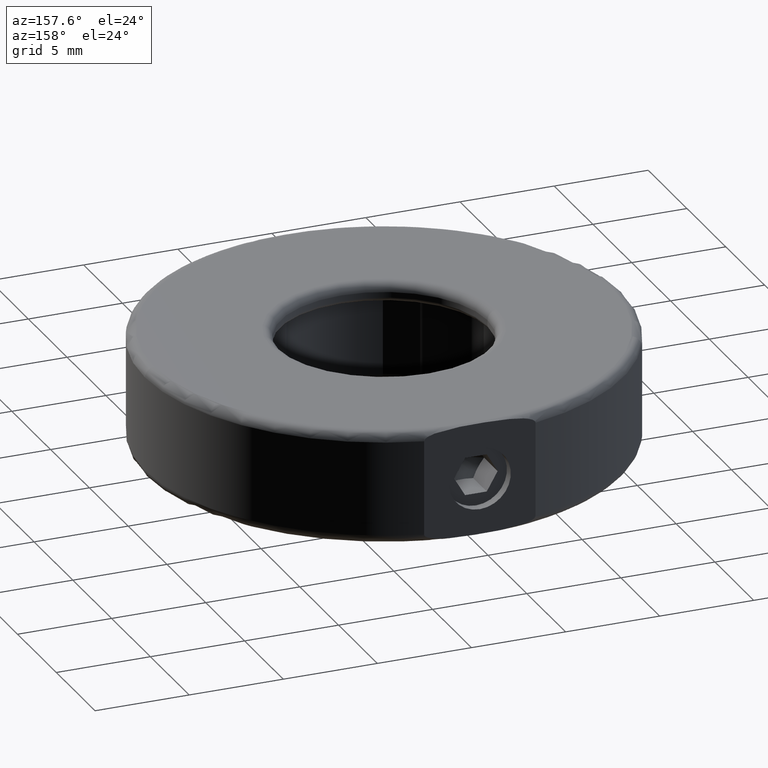
[diagram: clean part render]
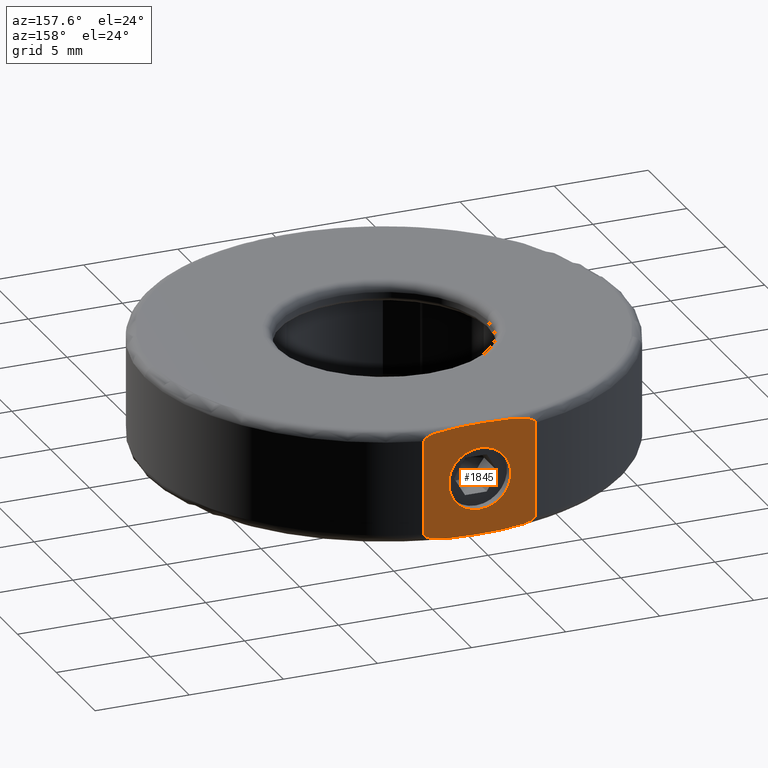
[diagram: same view with one face highlighted and labeled with its STEP entity id]
A machine part, auxiliary view. The second image highlights one B-rep face of the part: STEP entity #1845.
In plain terms, the highlighted planar face has unit normal (0, 1, 0).
Its self-contained STEP definition (entity closure, byte-faithful):
#66 = VERTEX_POINT ( 'NONE', #1600 ) ;
#76 = VERTEX_POINT ( 'NONE', #282 ) ;
#114 = CARTESIAN_POINT ( 'NONE',  ( -2.871027734352352000, 13.62512822390195500, 2.719092662411367400 ) ) ;
#124 = CARTESIAN_POINT ( 'NONE',  ( -3.091778835837235600, 13.62512822390195300, 2.533226409577007800 ) ) ;
#133 = CARTESIAN_POINT ( 'NONE',  ( -0.6459958498050177900, 13.62512822390195300, -2.976957350977251800 ) ) ;
#152 = CARTESIAN_POINT ( 'NONE',  ( -2.693521343809027500, 13.62512822390195500, -2.787365535200864800 ) ) ;
#162 = CARTESIAN_POINT ( 'NONE',  ( 2.749478708025364400, 13.62512822390195500, -2.636536391317756900 ) ) ;
#176 = AXIS2_PLACEMENT_3D ( 'NONE', #780, #992, #1003 ) ;
#189 = VERTEX_POINT ( 'NONE', #1264 ) ;
#264 = EDGE_LOOP ( 'NONE', ( #271, #419, #1634, #2265 ) ) ;
#271 = ORIENTED_EDGE ( 'NONE', *, *, #1625, .F. ) ;
#282 = CARTESIAN_POINT ( 'NONE',  ( -0.1307823819386641500, 13.62512822390195700, 1.649999999999987000 ) ) ;
#288 = CARTESIAN_POINT ( 'NONE',  ( -2.690206657662578900, 13.62512822390195500, 2.788354658295196100 ) ) ;
#310 = LINE ( 'NONE', #1415, #2058 ) ;
#312 = CARTESIAN_POINT ( 'NONE',  ( -3.037157889564420500, 13.62512822390195700, -2.614659632604455600 ) ) ;
#320 = CARTESIAN_POINT ( 'NONE',  ( -3.036354261264732300, 13.62512822390196000, 2.615509013855479300 ) ) ;
#323 = CARTESIAN_POINT ( 'NONE',  ( 2.815521369404864900, 13.62512822390195500, -2.564068744011605900 ) ) ;
#337 = CARTESIAN_POINT ( 'NONE',  ( 2.428641893785251400, 13.62512822390195300, -2.788354658295199200 ) ) ;
#419 = ORIENTED_EDGE ( 'NONE', *, *, #990, .T. ) ;
#431 = FACE_OUTER_BOUND ( 'NONE', #264, .T. ) ;
#442 = DIRECTION ( 'NONE',  ( 0.0000000000000000000, -0.0000000000000000000, 1.000000000000000000 ) ) ;
#452 = DIRECTION ( 'NONE',  ( 0.0000000000000000000, 1.000000000000000000, 0.0000000000000000000 ) ) ;
#480 = CARTESIAN_POINT ( 'NONE',  ( -1.159692197158571600, 13.62512822390195800, 2.971245217262653800 ) ) ;
#503 = CARTESIAN_POINT ( 'NONE',  ( 2.775593125687089400, 13.62512822390195100, 2.614659632604446200 ) ) ;
#505 = CARTESIAN_POINT ( 'NONE',  ( -2.567373996829036100, 13.62512822390195300, -2.817856692498362100 ) ) ;
#514 = CARTESIAN_POINT ( 'NONE',  ( 2.301617096900977300, 13.62512822390195300, -2.818817749183581100 ) ) ;
#520 = CARTESIAN_POINT ( 'NONE',  ( 2.609462970475023600, 13.62512822390195500, -2.719092662411370900 ) ) ;
#529 = CARTESIAN_POINT ( 'NONE',  ( -3.077165955761747900, 13.62512822390195500, -2.563798731450132700 ) ) ;
#616 = VERTEX_POINT ( 'NONE', #1494 ) ;
#622 = PLANE ( 'NONE',  #1151 ) ;
#663 = CARTESIAN_POINT ( 'NONE',  ( -2.930357791034510200, 13.62512822390195700, 2.692204496597856900 ) ) ;
#698 = CARTESIAN_POINT ( 'NONE',  ( 2.830214071959914700, 13.62512822390195700, -2.533226409577014500 ) ) ;
#714 = CARTESIAN_POINT ( 'NONE',  ( 2.668793027157179600, 13.62512822390195500, -2.692204496597855500 ) ) ;
#780 = CARTESIAN_POINT ( 'NONE',  ( -0.1307823819386641500, 13.62512822390195700, -1.301042606982605300E-015 ) ) ;
#796 = CARTESIAN_POINT ( 'NONE',  ( -0.1307823819386641500, 13.62512822390195500, 2.999999999999997800 ) ) ;
#814 = DIRECTION ( 'NONE',  ( -0.0000000000000000000, -0.0000000000000000000, -1.000000000000000000 ) ) ;
#839 = CARTESIAN_POINT ( 'NONE',  ( 0.8986555207251134500, 13.62512822390195700, 2.971289814684420400 ) ) ;
#849 = CARTESIAN_POINT ( 'NONE',  ( 2.830214071959913800, 13.62512822390195500, 2.499999999999997300 ) ) ;
#858 = CARTESIAN_POINT ( 'NONE',  ( 2.305809232951707300, 13.62512822390195800, 2.817856692498357700 ) ) ;
#869 = CARTESIAN_POINT ( 'NONE',  ( 2.774789497387406100, 13.62512822390195700, -2.615509013855482000 ) ) ;
#876 = CARTESIAN_POINT ( 'NONE',  ( -0.6441267620280143300, 13.62512822390195700, 2.976981828199779700 ) ) ;
#886 = CARTESIAN_POINT ( 'NONE',  ( 0.3825619981506865300, 13.62512822390195500, -2.976981828199783700 ) ) ;
#990 = EDGE_CURVE ( 'NONE', #189, #1836, #1825, .T. ) ;
#992 = DIRECTION ( 'NONE',  ( -0.0000000000000000000, 1.000000000000000000, -0.0000000000000000000 ) ) ;
#999 = CARTESIAN_POINT ( 'NONE',  ( 2.830214071959913800, 13.62512822390195500, 2.499999999999997300 ) ) ;
#1000 = AXIS2_PLACEMENT_3D ( 'NONE', #1927, #1903, #2087 ) ;
#1003 = DIRECTION ( 'NONE',  ( 0.0000000000000000000, 0.0000000000000000000, 1.000000000000000000 ) ) ;
#1032 = CARTESIAN_POINT ( 'NONE',  ( -2.563181860778304300, 13.62512822390195500, 2.818817749183577100 ) ) ;
#1047 = CARTESIAN_POINT ( 'NONE',  ( 2.611608024788580000, 13.62512822390196000, 2.718126256177167300 ) ) ;
#1059 = CARTESIAN_POINT ( 'NONE',  ( 1.667205003878407200, 13.62512822390195700, -2.917453096225491200 ) ) ;
#1151 = AXIS2_PLACEMENT_3D ( 'NONE', #796, #452, #442 ) ;
#1221 = CARTESIAN_POINT ( 'NONE',  ( 1.669553385708239600, 13.62512822390195500, 2.917247867333305800 ) ) ;
#1227 = CARTESIAN_POINT ( 'NONE',  ( 1.926089808700925100, 13.62512822390195300, 2.892070181259375000 ) ) ;
#1230 = CARTESIAN_POINT ( 'NONE',  ( -2.873172788665907500, 13.62512822390195800, -2.718126256177170400 ) ) ;
#1233 = CARTESIAN_POINT ( 'NONE',  ( 2.670115920195687200, 13.62512822390195700, 2.691488670934130100 ) ) ;
#1249 = CARTESIAN_POINT ( 'NONE',  ( -1.931118149585568300, 13.62512822390195500, -2.917247867333310700 ) ) ;
#1264 = CARTESIAN_POINT ( 'NONE',  ( -3.091778835837243100, 13.62512822390195500, 2.499999999999997300 ) ) ;
#1285 = VERTEX_POINT ( 'NONE', #2217 ) ;
#1309 = EDGE_CURVE ( 'NONE', #616, #76, #1936, .T. ) ;
#1392 = B_SPLINE_CURVE_WITH_KNOTS ( 'NONE', 3,
 ( #2363, #698, #323, #869, #162, #714, #520, #337, #514, #1812, #1059, #1800, #886, #133, #1455, #1249, #1429, #505, #152, #1230, #1446, #1642, #312, #529, #2195, #2331 ),
 .UNSPECIFIED., .F., .F.,
 ( 4, 2, 2, 2, 2, 2, 2, 2, 2, 2, 2, 2, 4 ),
 ( 0.0000000000000000000, 9.765302459198912500E-005, 0.0001953060491839782500, 0.0003906120983679565000, 0.0007812241967359141900, 0.001562448393471829500, 0.003124896786943660200, 0.004687345180415490600, 0.005468569377151406000, 0.005859181475519365000, 0.006054487524703343200, 0.006152140549295332700, 0.006249793573887323100 ),
 .UNSPECIFIED. ) ;
#1415 = CARTESIAN_POINT ( 'NONE',  ( -3.091778835837243100, 13.62512822390195500, 2.999999999999997800 ) ) ;
#1418 = CARTESIAN_POINT ( 'NONE',  ( 0.3844310859276880400, 13.62512822390195800, 2.976957350977248200 ) ) ;
#1429 = CARTESIAN_POINT ( 'NONE',  ( -2.187654572578254400, 13.62512822390195500, -2.892070181259379900 ) ) ;
#1446 = CARTESIAN_POINT ( 'NONE',  ( -2.931680684073006700, 13.62512822390195700, -2.691488670934137700 ) ) ;
#1455 = CARTESIAN_POINT ( 'NONE',  ( -1.160220284602442100, 13.62512822390195700, -2.971289814684425300 ) ) ;
#1474 = EDGE_CURVE ( 'NONE', #1836, #66, #1826, .T. ) ;
#1481 = CIRCLE ( 'NONE', #1000, 1.649999999999988400 ) ;
#1494 = CARTESIAN_POINT ( 'NONE',  ( -0.1307823819386639600, 13.62512822390195700, -1.649999999999989500 ) ) ;
#1590 = EDGE_LOOP ( 'NONE', ( #2048, #2122 ) ) ;
#1593 = CARTESIAN_POINT ( 'NONE',  ( -3.091778835837243100, 13.62512822390195500, 2.499999999999997300 ) ) ;
#1595 = FACE_BOUND ( 'NONE', #1590, .T. ) ;
#1600 = CARTESIAN_POINT ( 'NONE',  ( 2.830214071959913800, 13.62512822390195500, -2.500000000000001800 ) ) ;
#1602 = CARTESIAN_POINT ( 'NONE',  ( -3.011043471902694600, 13.62512822390195700, 2.636536391317757700 ) ) ;
#1625 = EDGE_CURVE ( 'NONE', #189, #1285, #310, .T. ) ;
#1634 = ORIENTED_EDGE ( 'NONE', *, *, #1474, .T. ) ;
#1642 = CARTESIAN_POINT ( 'NONE',  ( -3.011909117332002900, 13.62512822390195500, -2.635837874443101500 ) ) ;
#1773 = CARTESIAN_POINT ( 'NONE',  ( 2.830214071959913800, 13.62512822390195500, 2.999999999999997800 ) ) ;
#1784 = CARTESIAN_POINT ( 'NONE',  ( 2.431956579931698700, 13.62512822390195300, 2.787365535200860400 ) ) ;
#1793 = CARTESIAN_POINT ( 'NONE',  ( -1.928769767755734700, 13.62512822390195800, 2.917453096225487200 ) ) ;
#1800 = CARTESIAN_POINT ( 'NONE',  ( 0.8981274332812420000, 13.62512822390195500, -2.971245217262657800 ) ) ;
#1812 = CARTESIAN_POINT ( 'NONE',  ( 1.922710564004985500, 13.62512822390195800, -2.892440450586492700 ) ) ;
#1825 = B_SPLINE_CURVE_WITH_KNOTS ( 'NONE', 3,
 ( #1593, #124, #2323, #320, #1602, #663, #114, #288, #1032, #1969, #1793, #480, #876, #1418, #839, #1221, #1227, #858, #1784, #1047, #1233, #2165, #503, #2315, #1961, #849 ),
 .UNSPECIFIED., .F., .F.,
 ( 4, 2, 2, 2, 2, 2, 2, 2, 2, 2, 2, 2, 4 ),
 ( 1.371419323662773900E-018, 9.765302459198886800E-005, 0.0001953060491839763800, 0.0003906120983679516800, 0.0007812241967359011800, 0.001562448393471799800, 0.003124896786943598200, 0.004687345180415396900, 0.005468569377151295800, 0.005859181475519245300, 0.006054487524703220000, 0.006152140549295206900, 0.006249793573887193000 ),
 .UNSPECIFIED. ) ;
#1826 = LINE ( 'NONE', #1773, #2171 ) ;
#1836 = VERTEX_POINT ( 'NONE', #999 ) ;
#1845 = ADVANCED_FACE ( 'NONE', ( #1595, #431 ), #622, .T. ) ;
#1903 = DIRECTION ( 'NONE',  ( -0.0000000000000000000, 1.000000000000000000, -0.0000000000000000000 ) ) ;
#1927 = CARTESIAN_POINT ( 'NONE',  ( -0.1307823819386641500, 13.62512822390195700, -1.301042606982605300E-015 ) ) ;
#1936 = CIRCLE ( 'NONE', #176, 1.649999999999988400 ) ;
#1950 = EDGE_CURVE ( 'NONE', #76, #616, #1481, .T. ) ;
#1961 = CARTESIAN_POINT ( 'NONE',  ( 2.830214071960094600, 13.62512822390195800, 2.532374462396620500 ) ) ;
#1969 = CARTESIAN_POINT ( 'NONE',  ( -2.184275327882312400, 13.62512822390195800, 2.892440450586488200 ) ) ;
#2048 = ORIENTED_EDGE ( 'NONE', *, *, #1950, .F. ) ;
#2058 = VECTOR ( 'NONE', #2335, 1000.000000000000000 ) ;
#2087 = DIRECTION ( 'NONE',  ( 0.0000000000000000000, 0.0000000000000000000, 1.000000000000000000 ) ) ;
#2122 = ORIENTED_EDGE ( 'NONE', *, *, #1309, .F. ) ;
#2132 = EDGE_CURVE ( 'NONE', #66, #1285, #1392, .T. ) ;
#2165 = CARTESIAN_POINT ( 'NONE',  ( 2.750344353454678100, 13.62512822390195300, 2.635837874443097500 ) ) ;
#2171 = VECTOR ( 'NONE', #814, 1000.000000000000000 ) ;
#2195 = CARTESIAN_POINT ( 'NONE',  ( -3.091778835837424300, 13.62512822390195700, -2.532374462396624400 ) ) ;
#2217 = CARTESIAN_POINT ( 'NONE',  ( -3.091778835837243100, 13.62512822390195500, -2.500000000000002700 ) ) ;
#2265 = ORIENTED_EDGE ( 'NONE', *, *, #2132, .T. ) ;
#2315 = CARTESIAN_POINT ( 'NONE',  ( 2.815601191884414600, 13.62512822390195700, 2.563798731450127800 ) ) ;
#2323 = CARTESIAN_POINT ( 'NONE',  ( -3.077086133282192400, 13.62512822390195500, 2.564068744011602300 ) ) ;
#2331 = CARTESIAN_POINT ( 'NONE',  ( -3.091778835837243100, 13.62512822390195500, -2.500000000000002700 ) ) ;
#2335 = DIRECTION ( 'NONE',  ( -0.0000000000000000000, -0.0000000000000000000, -1.000000000000000000 ) ) ;
#2363 = CARTESIAN_POINT ( 'NONE',  ( 2.830214071959913800, 13.62512822390195500, -2.500000000000001800 ) ) ;